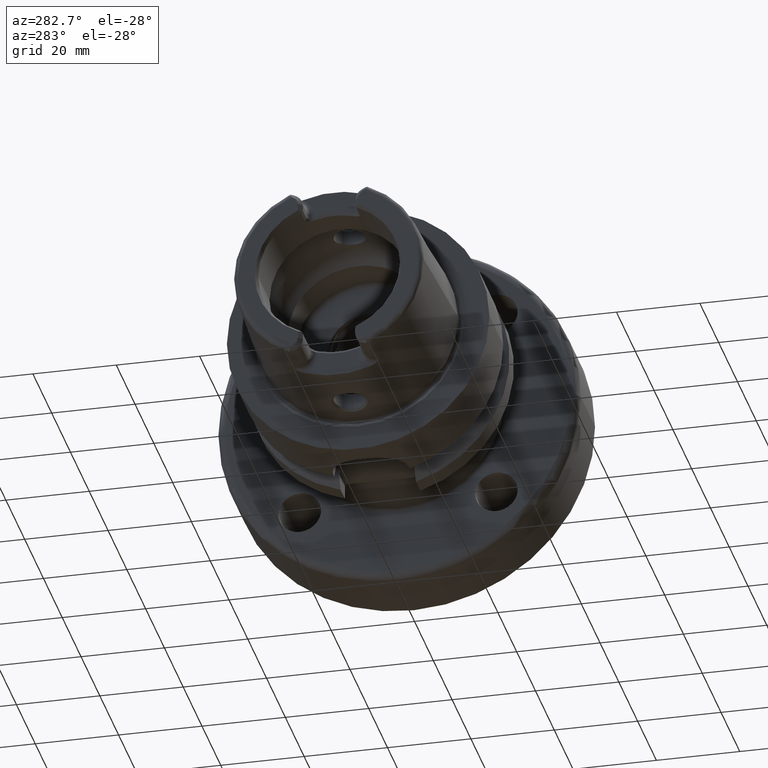
[diagram: clean part render]
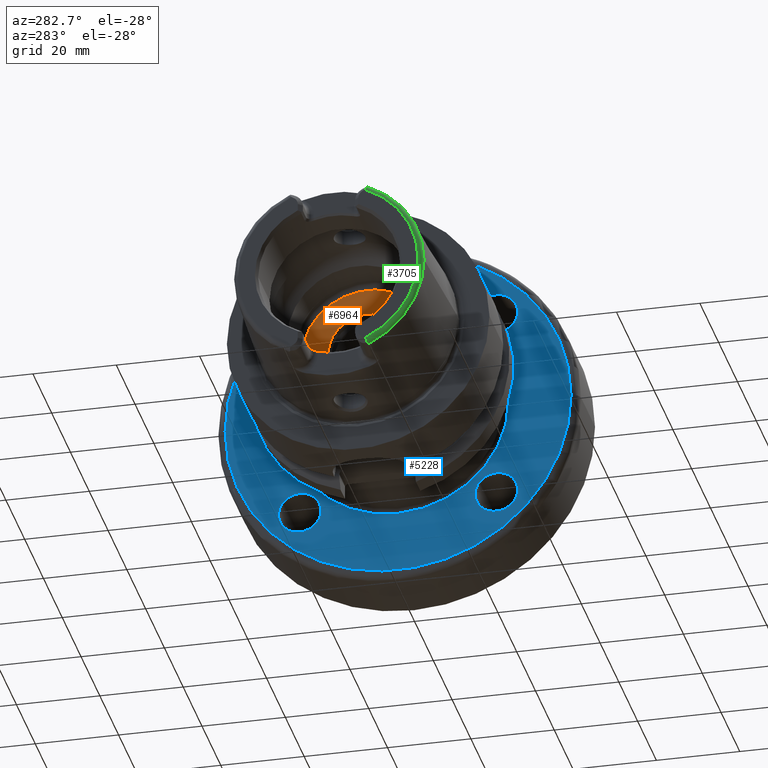
[diagram: same view with three faces highlighted in distinct colors, each labeled with its STEP entity id]
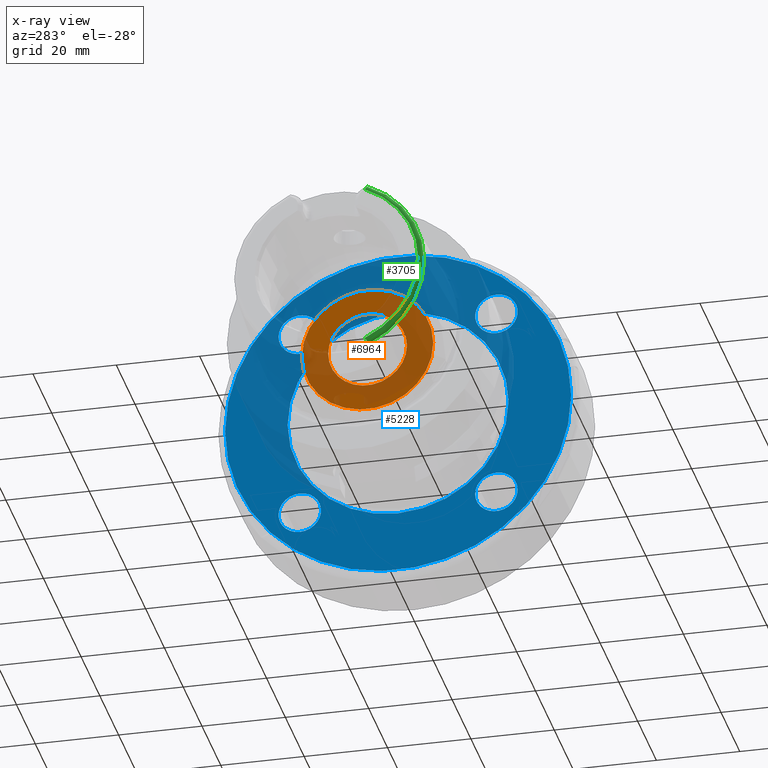
[diagram: x-ray of the same camera — body ghosted, the three highlighted faces saturated]
A machine part, auxiliary view with three faces highlighted in distinct colors.
The next image is the same camera in x-ray (body ghosted, the three faces saturated) — at least one of them is partly hidden behind the body in this view.
Their STEP definitions:

[orange] entity #6964 — the highlighted planar face has unit normal (1, 0, 0).
#2769=CARTESIAN_POINT('',(1.E1,0.E0,0.E0));
#2770=DIRECTION('',(1.E0,0.E0,0.E0));
#2771=DIRECTION('',(0.E0,1.E0,0.E0));
#2772=AXIS2_PLACEMENT_3D('',#2769,#2770,#2771);
#2779=CARTESIAN_POINT('',(1.E1,0.E0,0.E0));
#2780=DIRECTION('',(-1.E0,0.E0,0.E0));
#2781=DIRECTION('',(0.E0,1.E0,0.E0));
#2782=AXIS2_PLACEMENT_3D('',#2779,#2780,#2781);
#2789=CARTESIAN_POINT('',(1.E1,0.E0,0.E0));
#2790=DIRECTION('',(1.E0,0.E0,0.E0));
#2791=DIRECTION('',(0.E0,1.E0,0.E0));
#2792=AXIS2_PLACEMENT_3D('',#2789,#2790,#2791);
#2794=CARTESIAN_POINT('',(1.E1,0.E0,0.E0));
#2795=DIRECTION('',(1.E0,0.E0,0.E0));
#2796=DIRECTION('',(0.E0,-1.E0,0.E0));
#2797=AXIS2_PLACEMENT_3D('',#2794,#2795,#2796);
#2997=CARTESIAN_POINT('',(1.E1,1.575E1,0.E0));
#2999=VERTEX_POINT('',#2997);
#3001=CARTESIAN_POINT('',(1.E1,-1.575E1,0.E0));
#3003=VERTEX_POINT('',#3001);
#3248=CARTESIAN_POINT('',(1.E1,9.451175134595E0,0.E0));
#3249=CARTESIAN_POINT('',(1.E1,-9.451175134595E0,0.E0));
#3250=VERTEX_POINT('',#3248);
#3251=VERTEX_POINT('',#3249);
#6949=CARTESIAN_POINT('',(1.E1,0.E0,0.E0));
#6950=DIRECTION('',(1.E0,0.E0,0.E0));
#6951=DIRECTION('',(0.E0,-1.E0,0.E0));
#6952=AXIS2_PLACEMENT_3D('',#6949,#6950,#6951);
#6953=PLANE('',#6952);
#6954=ORIENTED_EDGE('',*,*,#6931,.T.);
#6955=ORIENTED_EDGE('',*,*,#6942,.F.);
#6956=EDGE_LOOP('',(#6954,#6955));
#6957=FACE_OUTER_BOUND('',#6956,.F.);
#6959=ORIENTED_EDGE('',*,*,#6958,.F.);
#6961=ORIENTED_EDGE('',*,*,#6960,.F.);
#6962=EDGE_LOOP('',(#6959,#6961));
#6963=FACE_BOUND('',#6962,.F.);
#6964=ADVANCED_FACE('',(#6957,#6963),#6953,.F.);
#2773=CIRCLE('',#2772,1.575E1);
#2783=CIRCLE('',#2782,1.575E1);
#2793=CIRCLE('',#2792,9.451175134595E0);
#2798=CIRCLE('',#2797,9.451175134595E0);
#6931=EDGE_CURVE('',#2999,#3003,#2773,.T.);
#6942=EDGE_CURVE('',#2999,#3003,#2783,.T.);
#6958=EDGE_CURVE('',#3250,#3251,#2793,.T.);
#6960=EDGE_CURVE('',#3251,#3250,#2798,.T.);

[blue] entity #5228 — the highlighted planar face has unit normal (1, 0, 0).
#1481=CARTESIAN_POINT('',(4.25E1,0.E0,0.E0));
#1482=DIRECTION('',(-1.E0,0.E0,0.E0));
#1483=DIRECTION('',(0.E0,1.E0,0.E0));
#1484=AXIS2_PLACEMENT_3D('',#1481,#1482,#1483);
#1486=CARTESIAN_POINT('',(4.25E1,0.E0,0.E0));
#1487=DIRECTION('',(-1.E0,0.E0,0.E0));
#1488=DIRECTION('',(0.E0,-1.E0,0.E0));
#1489=AXIS2_PLACEMENT_3D('',#1486,#1487,#1488);
#1491=CARTESIAN_POINT('',(4.25E1,0.E0,0.E0));
#1492=DIRECTION('',(1.E0,0.E0,0.E0));
#1493=DIRECTION('',(0.E0,-1.E0,0.E0));
#1494=AXIS2_PLACEMENT_3D('',#1491,#1492,#1493);
#1496=CARTESIAN_POINT('',(4.25E1,0.E0,0.E0));
#1497=DIRECTION('',(1.E0,0.E0,0.E0));
#1498=DIRECTION('',(0.E0,1.E0,0.E0));
#1499=AXIS2_PLACEMENT_3D('',#1496,#1497,#1498);
#1501=CARTESIAN_POINT('',(4.25E1,2.358201115257E1,2.358201115257E1));
#1502=DIRECTION('',(1.E0,0.E0,0.E0));
#1503=DIRECTION('',(0.E0,-1.E0,0.E0));
#1504=AXIS2_PLACEMENT_3D('',#1501,#1502,#1503);
#1506=CARTESIAN_POINT('',(4.25E1,2.358201115257E1,2.358201115257E1));
#1507=DIRECTION('',(1.E0,0.E0,0.E0));
#1508=DIRECTION('',(0.E0,1.E0,0.E0));
#1509=AXIS2_PLACEMENT_3D('',#1506,#1507,#1508);
#1511=CARTESIAN_POINT('',(4.25E1,-2.358201115257E1,2.358201115257E1));
#1512=DIRECTION('',(1.E0,0.E0,0.E0));
#1513=DIRECTION('',(0.E0,0.E0,-1.E0));
#1514=AXIS2_PLACEMENT_3D('',#1511,#1512,#1513);
#1516=CARTESIAN_POINT('',(4.25E1,-2.358201115257E1,2.358201115257E1));
#1517=DIRECTION('',(1.E0,0.E0,0.E0));
#1518=DIRECTION('',(0.E0,0.E0,1.E0));
#1519=AXIS2_PLACEMENT_3D('',#1516,#1517,#1518);
#1521=CARTESIAN_POINT('',(4.25E1,-2.358201115257E1,-2.358201115257E1));
#1522=DIRECTION('',(1.E0,0.E0,0.E0));
#1523=DIRECTION('',(0.E0,1.E0,0.E0));
#1524=AXIS2_PLACEMENT_3D('',#1521,#1522,#1523);
#1526=CARTESIAN_POINT('',(4.25E1,-2.358201115257E1,-2.358201115257E1));
#1527=DIRECTION('',(1.E0,0.E0,0.E0));
#1528=DIRECTION('',(0.E0,-1.E0,0.E0));
#1529=AXIS2_PLACEMENT_3D('',#1526,#1527,#1528);
#1531=CARTESIAN_POINT('',(4.25E1,2.358201115257E1,-2.358201115257E1));
#1532=DIRECTION('',(1.E0,0.E0,0.E0));
#1533=DIRECTION('',(0.E0,0.E0,1.E0));
#1534=AXIS2_PLACEMENT_3D('',#1531,#1532,#1533);
#1536=CARTESIAN_POINT('',(4.25E1,2.358201115257E1,-2.358201115257E1));
#1537=DIRECTION('',(1.E0,0.E0,0.E0));
#1538=DIRECTION('',(0.E0,0.E0,-1.E0));
#1539=AXIS2_PLACEMENT_3D('',#1536,#1537,#1538);
#3457=CARTESIAN_POINT('',(4.25E1,2.65E1,0.E0));
#3458=CARTESIAN_POINT('',(4.25E1,-2.65E1,0.E0));
#3459=VERTEX_POINT('',#3457);
#3460=VERTEX_POINT('',#3458);
#3484=CARTESIAN_POINT('',(4.25E1,-4.15E1,-1.016456843292E-14));
#3485=CARTESIAN_POINT('',(4.25E1,4.15E1,0.E0));
#3486=VERTEX_POINT('',#3484);
#3487=VERTEX_POINT('',#3485);
#3498=CARTESIAN_POINT('',(4.25E1,1.848201115257E1,2.358201115257E1));
#3499=VERTEX_POINT('',#3498);
#3500=CARTESIAN_POINT('',(4.25E1,2.868201115257E1,2.358201115257E1));
#3501=VERTEX_POINT('',#3500);
#3506=CARTESIAN_POINT('',(4.25E1,-2.358201115257E1,1.848201115257E1));
#3507=VERTEX_POINT('',#3506);
#3508=CARTESIAN_POINT('',(4.25E1,-2.358201115257E1,2.868201115257E1));
#3509=VERTEX_POINT('',#3508);
#3514=CARTESIAN_POINT('',(4.25E1,-1.848201115257E1,-2.358201115257E1));
#3515=VERTEX_POINT('',#3514);
#3516=CARTESIAN_POINT('',(4.25E1,-2.868201115257E1,-2.358201115257E1));
#3517=VERTEX_POINT('',#3516);
#3522=CARTESIAN_POINT('',(4.25E1,2.358201115257E1,-1.848201115257E1));
#3523=VERTEX_POINT('',#3522);
#3524=CARTESIAN_POINT('',(4.25E1,2.358201115257E1,-2.868201115257E1));
#3525=VERTEX_POINT('',#3524);
#5188=CARTESIAN_POINT('',(4.25E1,0.E0,0.E0));
#5189=DIRECTION('',(1.E0,0.E0,0.E0));
#5190=DIRECTION('',(0.E0,-1.E0,0.E0));
#5191=AXIS2_PLACEMENT_3D('',#5188,#5189,#5190);
#5192=PLANE('',#5191);
#5194=ORIENTED_EDGE('',*,*,#5193,.T.);
#5196=ORIENTED_EDGE('',*,*,#5195,.T.);
#5197=EDGE_LOOP('',(#5194,#5196));
#5198=FACE_OUTER_BOUND('',#5197,.F.);
#5199=ORIENTED_EDGE('',*,*,#5178,.T.);
#5201=ORIENTED_EDGE('',*,*,#5200,.T.);
#5202=EDGE_LOOP('',(#5199,#5201));
#5203=FACE_BOUND('',#5202,.F.);
#5205=ORIENTED_EDGE('',*,*,#5204,.F.);
#5207=ORIENTED_EDGE('',*,*,#5206,.F.);
#5208=EDGE_LOOP('',(#5205,#5207));
#5209=FACE_BOUND('',#5208,.F.);
#5211=ORIENTED_EDGE('',*,*,#5210,.F.);
#5213=ORIENTED_EDGE('',*,*,#5212,.F.);
#5214=EDGE_LOOP('',(#5211,#5213));
#5215=FACE_BOUND('',#5214,.F.);
#5217=ORIENTED_EDGE('',*,*,#5216,.F.);
#5219=ORIENTED_EDGE('',*,*,#5218,.F.);
#5220=EDGE_LOOP('',(#5217,#5219));
#5221=FACE_BOUND('',#5220,.F.);
#5223=ORIENTED_EDGE('',*,*,#5222,.F.);
#5225=ORIENTED_EDGE('',*,*,#5224,.F.);
#5226=EDGE_LOOP('',(#5223,#5225));
#5227=FACE_BOUND('',#5226,.F.);
#5228=ADVANCED_FACE('',(#5198,#5203,#5209,#5215,#5221,#5227),#5192,.F.);
#1485=CIRCLE('',#1484,2.65E1);
#1490=CIRCLE('',#1489,2.65E1);
#1495=CIRCLE('',#1494,4.15E1);
#1500=CIRCLE('',#1499,4.15E1);
#1505=CIRCLE('',#1504,5.1E0);
#1510=CIRCLE('',#1509,5.1E0);
#1515=CIRCLE('',#1514,5.1E0);
#1520=CIRCLE('',#1519,5.1E0);
#1525=CIRCLE('',#1524,5.1E0);
#1530=CIRCLE('',#1529,5.1E0);
#1535=CIRCLE('',#1534,5.1E0);
#1540=CIRCLE('',#1539,5.1E0);
#5178=EDGE_CURVE('',#3459,#3460,#1485,.T.);
#5193=EDGE_CURVE('',#3486,#3487,#1495,.T.);
#5195=EDGE_CURVE('',#3487,#3486,#1500,.T.);
#5200=EDGE_CURVE('',#3460,#3459,#1490,.T.);
#5204=EDGE_CURVE('',#3499,#3501,#1505,.T.);
#5206=EDGE_CURVE('',#3501,#3499,#1510,.T.);
#5210=EDGE_CURVE('',#3507,#3509,#1515,.T.);
#5212=EDGE_CURVE('',#3509,#3507,#1520,.T.);
#5216=EDGE_CURVE('',#3515,#3517,#1525,.T.);
#5218=EDGE_CURVE('',#3517,#3515,#1530,.T.);
#5222=EDGE_CURVE('',#3523,#3525,#1535,.T.);
#5224=EDGE_CURVE('',#3525,#3523,#1540,.T.);

[green] entity #3705 — the highlighted toroidal blend (fillet) surface has major radius 21.5761 mm and minor (blend) radius 1.2 mm.
#220=CARTESIAN_POINT('',(-3.2E1,-8.752868121732E0,-1.972091419616E1));
#221=CARTESIAN_POINT('',(-3.2E1,-8.806191392107E0,-1.975573003538E1));
#222=CARTESIAN_POINT('',(-3.199307728065E1,-8.906838058357E0,
-1.982971194007E1));
#223=CARTESIAN_POINT('',(-3.195660462370E1,-9.041248816786E0,
-1.996103000182E1));
#224=CARTESIAN_POINT('',(-3.189040233195E1,-9.144202826203E0,
-2.010731482616E1));
#225=CARTESIAN_POINT('',(-3.179646342749E1,-9.206041881340E0,
-2.025988014952E1));
#226=CARTESIAN_POINT('',(-3.168160529070E1,-9.224292971301E0,
-2.040896943202E1));
#227=CARTESIAN_POINT('',(-3.155472601909E1,-9.203436757989E0,
-2.054688136818E1));
#228=CARTESIAN_POINT('',(-3.146778482605E1,-9.169293416595E0,
-2.062842062115E1));
#229=CARTESIAN_POINT('',(-3.142329832300E1,-9.147789680232E0,
-2.066750973939E1));
#231=CARTESIAN_POINT('',(-3.2E1,0.E0,0.E0));
#232=DIRECTION('',(-1.E0,0.E0,0.E0));
#233=DIRECTION('',(0.E0,-4.056746540583E-1,-9.140175463604E-1));
#234=AXIS2_PLACEMENT_3D('',#231,#232,#233);
#236=CARTESIAN_POINT('',(-3.142329832300E1,-9.147789680232E0,2.066750973939E1));
#237=CARTESIAN_POINT('',(-3.146785463680E1,-9.169327161481E0,2.062835928028E1));
#238=CARTESIAN_POINT('',(-3.155487993536E1,-9.203474960428E0,2.054672249220E1));
#239=CARTESIAN_POINT('',(-3.168154941819E1,-9.224273580731E0,2.040902349895E1));
#240=CARTESIAN_POINT('',(-3.179638971845E1,-9.206079697358E0,2.025999286960E1));
#241=CARTESIAN_POINT('',(-3.189041365611E1,-9.144200972137E0,2.010730009138E1));
#242=CARTESIAN_POINT('',(-3.195659880516E1,-9.041253650427E0,1.996104010677E1));
#243=CARTESIAN_POINT('',(-3.199307626724E1,-8.906850532423E0,1.982972129493E1));
#244=CARTESIAN_POINT('',(-3.2E1,-8.806197293584E0,1.975573388857E1));
#245=CARTESIAN_POINT('',(-3.2E1,-8.752868121732E0,1.972091419616E1));
#247=CARTESIAN_POINT('',(-3.132832518959E1,-9.27E0,2.067E1));
#248=CARTESIAN_POINT('',(-3.134450759901E1,-9.250608646179E0,2.067E1));
#249=CARTESIAN_POINT('',(-3.137648814066E1,-9.210816796832E0,2.066962390252E1));
#250=CARTESIAN_POINT('',(-3.140779600340E1,-9.169107457374E0,2.066837887831E1));
#251=CARTESIAN_POINT('',(-3.142329832300E1,-9.147789680232E0,2.066750973939E1));
#253=CARTESIAN_POINT('',(-3.086004306431E1,-9.562027931336E0,2.067E1));
#254=CARTESIAN_POINT('',(-3.089908117982E1,-9.557369764332E0,2.067E1));
#255=CARTESIAN_POINT('',(-3.097780815735E1,-9.539070199208E0,2.067E1));
#256=CARTESIAN_POINT('',(-3.110050491135E1,-9.479694699778E0,2.067E1));
#257=CARTESIAN_POINT('',(-3.121836320761E1,-9.390392333018E0,2.067E1));
#258=CARTESIAN_POINT('',(-3.129230837722E1,-9.313158885277E0,2.067E1));
#259=CARTESIAN_POINT('',(-3.132832518959E1,-9.27E0,2.067E1));
#261=CARTESIAN_POINT('',(-3.086004306431E1,0.E0,0.E0));
#262=DIRECTION('',(1.E0,0.E0,0.E0));
#263=DIRECTION('',(0.E0,-4.198553792210E-1,9.075910205259E-1));
#264=AXIS2_PLACEMENT_3D('',#261,#262,#263);
#266=CARTESIAN_POINT('',(-3.086004306431E1,0.E0,0.E0));
#267=DIRECTION('',(-1.E0,0.E0,0.E0));
#268=DIRECTION('',(0.E0,-4.198553792210E-1,-9.075910205259E-1));
#269=AXIS2_PLACEMENT_3D('',#266,#267,#268);
#271=CARTESIAN_POINT('',(-3.132832518959E1,-9.27E0,-2.067E1));
#272=CARTESIAN_POINT('',(-3.129225458868E1,-9.313223339992E0,-2.067E1));
#273=CARTESIAN_POINT('',(-3.121820569130E1,-9.390519030682E0,-2.067E1));
#274=CARTESIAN_POINT('',(-3.110062643974E1,-9.479612323317E0,-2.067E1));
#275=CARTESIAN_POINT('',(-3.097775607391E1,-9.539101836846E0,-2.067E1));
#276=CARTESIAN_POINT('',(-3.089906305674E1,-9.557371926843E0,-2.067E1));
#277=CARTESIAN_POINT('',(-3.086004306431E1,-9.562027931336E0,-2.067E1));
#279=CARTESIAN_POINT('',(-3.142329832300E1,-9.147789680232E0,
-2.066750973939E1));
#280=CARTESIAN_POINT('',(-3.140773724452E1,-9.169188258734E0,
-2.066838217263E1));
#281=CARTESIAN_POINT('',(-3.137636553203E1,-9.210974971125E0,
-2.066962696388E1));
#282=CARTESIAN_POINT('',(-3.134444355624E1,-9.250685388521E0,-2.067E1));
#283=CARTESIAN_POINT('',(-3.132832518959E1,-9.27E0,-2.067E1));
#2991=CARTESIAN_POINT('',(-3.086004306431E1,-2.277457525750E1,0.E0));
#2992=VERTEX_POINT('',#2991);
#3031=CARTESIAN_POINT('',(-3.086004306431E1,-9.562027931336E0,2.067E1));
#3032=VERTEX_POINT('',#3031);
#3033=VERTEX_POINT('',#259);
#3069=VERTEX_POINT('',#251);
#3078=CARTESIAN_POINT('',(-3.2E1,-8.752868121732E0,1.972091419616E1));
#3079=VERTEX_POINT('',#3078);
#3112=CARTESIAN_POINT('',(-3.086004306431E1,-9.562027931336E0,-2.067E1));
#3113=VERTEX_POINT('',#3112);
#3114=VERTEX_POINT('',#271);
#3175=CARTESIAN_POINT('',(-3.2E1,-8.752868121732E0,-1.972091419616E1));
#3176=VERTEX_POINT('',#3175);
#3177=VERTEX_POINT('',#229);
#3683=CARTESIAN_POINT('',(-3.08E1,0.E0,0.E0));
#3684=DIRECTION('',(1.E0,0.E0,0.E0));
#3685=DIRECTION('',(0.E0,-1.E0,0.E0));
#3686=AXIS2_PLACEMENT_3D('',#3683,#3684,#3685);
#3687=TOROIDAL_SURFACE('',#3686,2.157607835286E1,1.2E0);
#3689=ORIENTED_EDGE('',*,*,#3688,.F.);
#3691=ORIENTED_EDGE('',*,*,#3690,.T.);
#3693=ORIENTED_EDGE('',*,*,#3692,.F.);
#3694=ORIENTED_EDGE('',*,*,#3646,.F.);
#3695=ORIENTED_EDGE('',*,*,#3576,.F.);
#3696=ORIENTED_EDGE('',*,*,#3557,.T.);
#3698=ORIENTED_EDGE('',*,*,#3697,.F.);
#3700=ORIENTED_EDGE('',*,*,#3699,.F.);
#3702=ORIENTED_EDGE('',*,*,#3701,.F.);
#3703=EDGE_LOOP('',(#3689,#3691,#3693,#3694,#3695,#3696,#3698,#3700,#3702));
#3704=FACE_OUTER_BOUND('',#3703,.F.);
#3705=ADVANCED_FACE('',(#3704),#3687,.T.);
#230=B_SPLINE_CURVE_WITH_KNOTS('',3,(#220,#221,#222,#223,#224,#225,#226,#227,
#228,#229),.UNSPECIFIED.,.F.,.F.,(4,1,1,1,1,1,1,4),(0.E0,1.428571428571E-1,
2.857142857143E-1,4.285714285714E-1,5.714285714286E-1,7.142857142857E-1,
8.571428571429E-1,1.E0),.UNSPECIFIED.);
#235=CIRCLE('',#234,2.157607835286E1);
#246=B_SPLINE_CURVE_WITH_KNOTS('',3,(#236,#237,#238,#239,#240,#241,#242,#243,
#244,#245),.UNSPECIFIED.,.F.,.F.,(4,1,1,1,1,1,1,4),(0.E0,1.428571428571E-1,
2.857142857143E-1,4.285714285714E-1,5.714285714286E-1,7.142857142857E-1,
8.571428571429E-1,1.E0),.UNSPECIFIED.);
#252=B_SPLINE_CURVE_WITH_KNOTS('',3,(#247,#248,#249,#250,#251),.UNSPECIFIED.,
.F.,.F.,(4,1,4),(0.E0,5.E-1,1.E0),.UNSPECIFIED.);
#260=B_SPLINE_CURVE_WITH_KNOTS('',3,(#253,#254,#255,#256,#257,#258,#259),
.UNSPECIFIED.,.F.,.F.,(4,1,1,1,4),(0.E0,2.5E-1,5.E-1,7.5E-1,1.E0),
.UNSPECIFIED.);
#265=CIRCLE('',#264,2.277457525750E1);
#270=CIRCLE('',#269,2.277457525750E1);
#278=B_SPLINE_CURVE_WITH_KNOTS('',3,(#271,#272,#273,#274,#275,#276,#277),
.UNSPECIFIED.,.F.,.F.,(4,1,1,1,4),(0.E0,2.5E-1,5.E-1,7.5E-1,1.E0),
.UNSPECIFIED.);
#284=B_SPLINE_CURVE_WITH_KNOTS('',3,(#279,#280,#281,#282,#283),.UNSPECIFIED.,
.F.,.F.,(4,1,4),(0.E0,5.E-1,1.E0),.UNSPECIFIED.);
#3557=EDGE_CURVE('',#3032,#2992,#265,.T.);
#3576=EDGE_CURVE('',#3032,#3033,#260,.T.);
#3646=EDGE_CURVE('',#3033,#3069,#252,.T.);
#3688=EDGE_CURVE('',#3176,#3177,#230,.T.);
#3690=EDGE_CURVE('',#3176,#3079,#235,.T.);
#3692=EDGE_CURVE('',#3069,#3079,#246,.T.);
#3697=EDGE_CURVE('',#3113,#2992,#270,.T.);
#3699=EDGE_CURVE('',#3114,#3113,#278,.T.);
#3701=EDGE_CURVE('',#3177,#3114,#284,.T.);